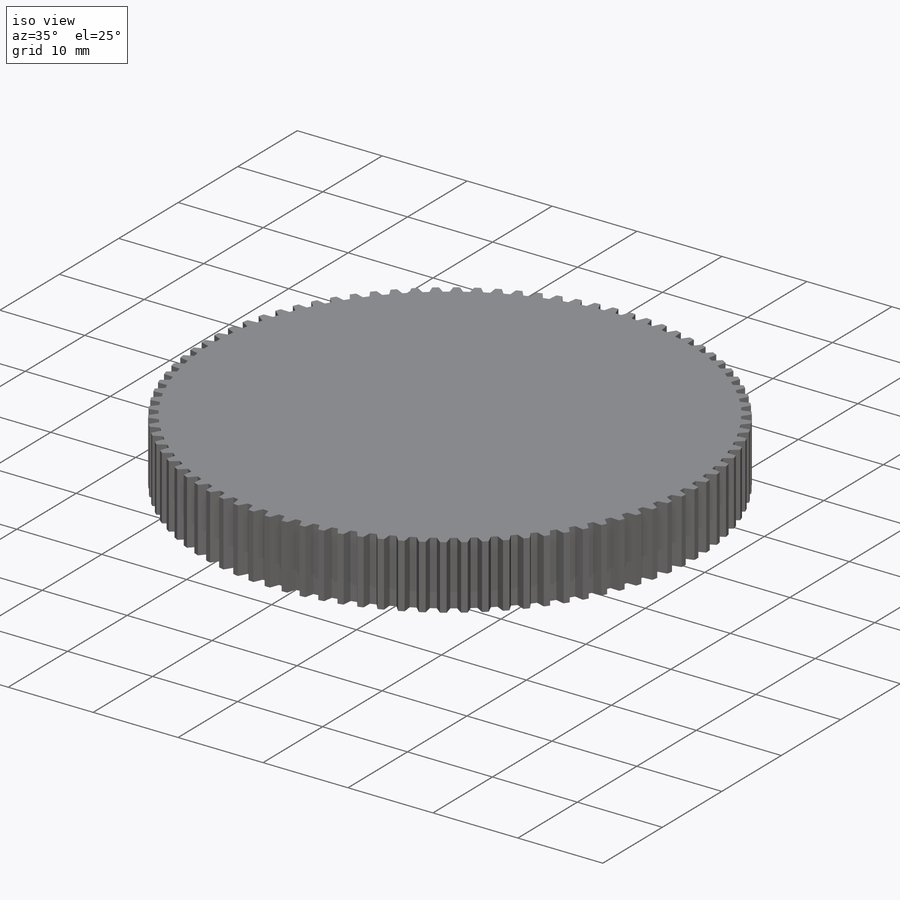
[diagram: iso view]
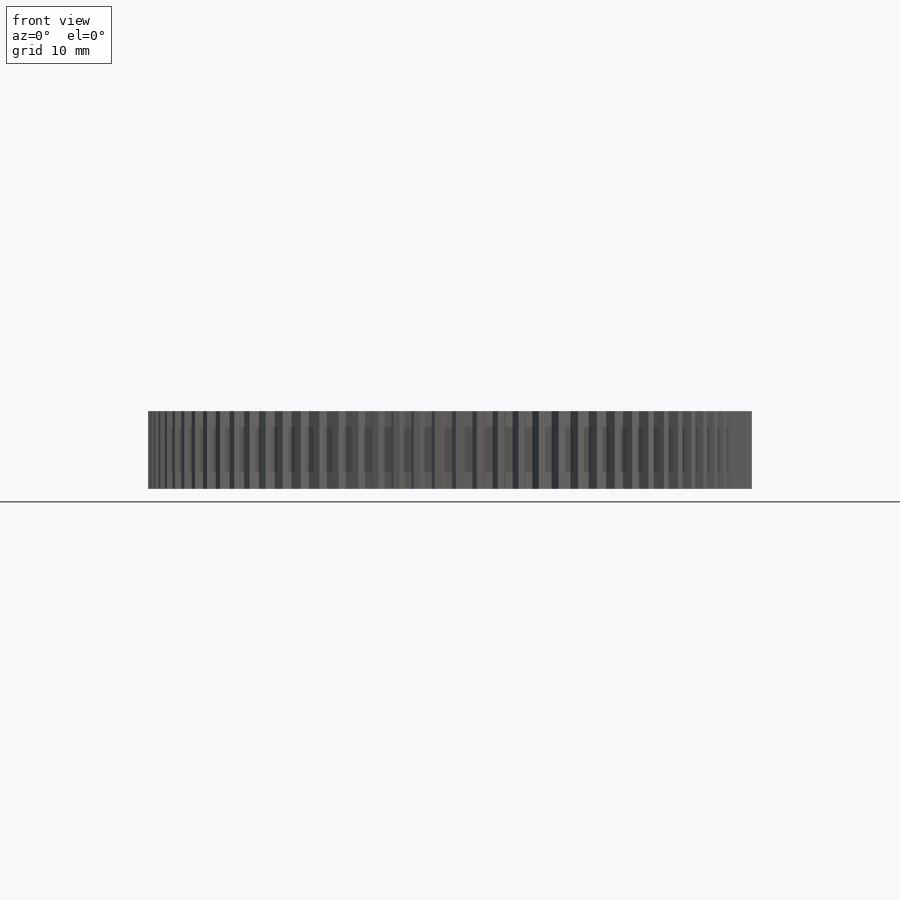
[diagram: front view]
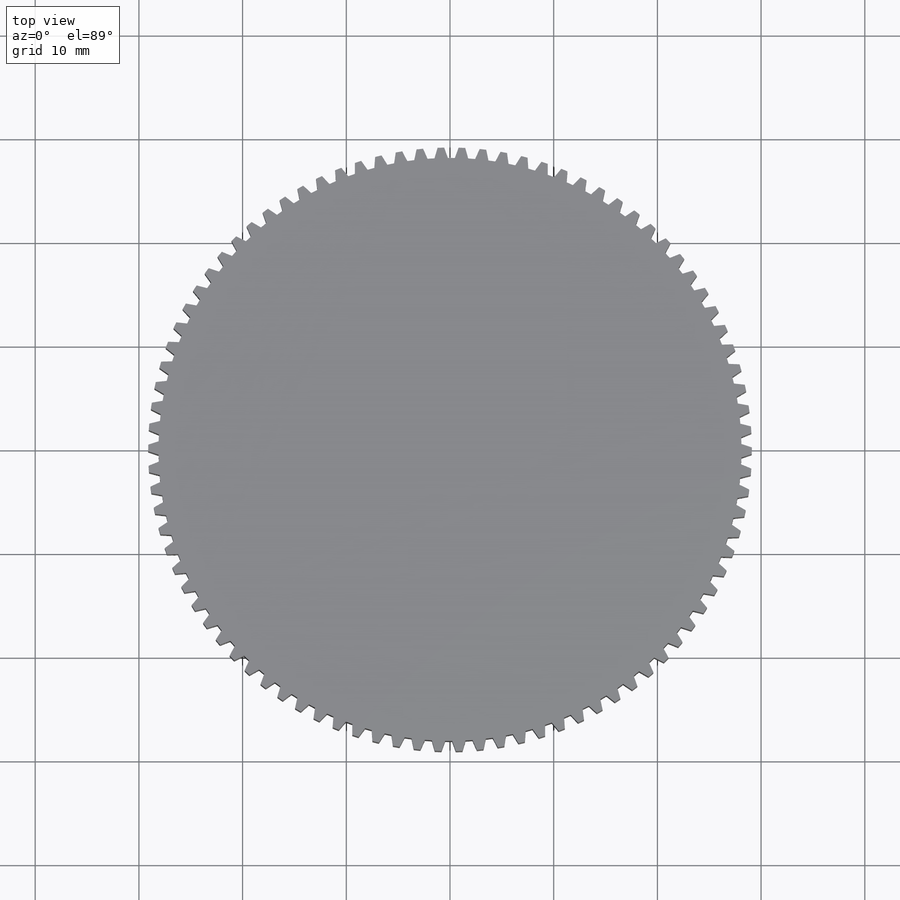
[diagram: top view]
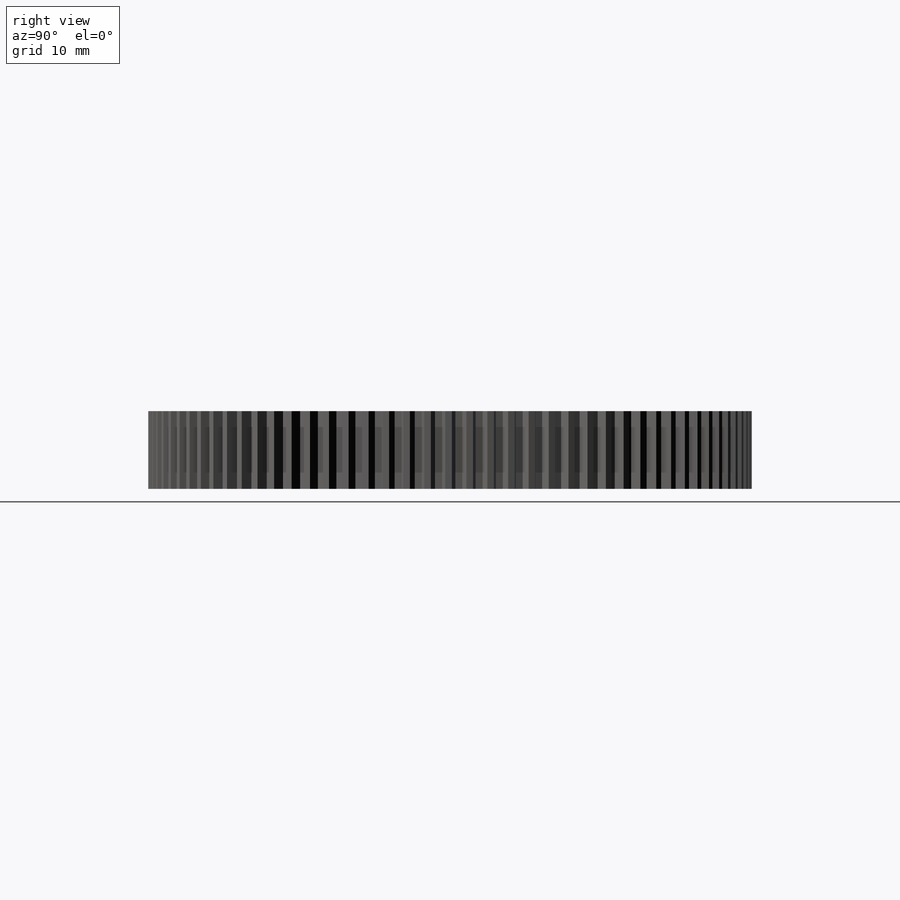
[diagram: right view]
SOLIDWORKS PART (.sldprt)
format: sldprt  version: not decoded by parser v0  size: 609,792 bytes
history: native  units: mm
features: sketch x3, cut_extrude x2, material x1, extrude x1, pattern_circular x1 (+11 scaffold rows collapsed)
feature tree (19):
  scaffold x11  (default folders/planes/origin — collapsed)
  material  "Material <not specified>"
  sketch  "Sketch1"  dims[c1.D1=58.21mm c1.D2=1.0mm c1.D3=~1.077363mm c2.D3=40.0deg c3.D3=~0.857775mm c4.D3=40.0deg c4.D4=~47.569519mm c5.D4=4.0deg c5.D5=0.67mm c5.D6=~0.703785mm c6.D6=40.0deg c6.D7=~0.910225mm c7.D6=90.0]
  extrude  "Boss-Extrude1"  Depth=7.5mm
  pattern_circular  "CirPattern1"  Count=90 Angle=360deg
  sketch  "Sketch2"  dims[D3=2.5mm D1=3.65mm D2=4.0mm]
  cut_extrude  "Cut-Extrude1"  Depth=5mm
  sketch  "Sketch3"  dims[D1=3.06mm]
  cut_extrude  "Cut-Extrude2"  [1 undecoded]
decode coverage: 6 of 7 modeling features carry decoded parameters
note: ~ marks probable driven/reference dimensions
note: 1 parameter value undecoded
note: suppression state not decoded; provenance and decode notes live in map.json
